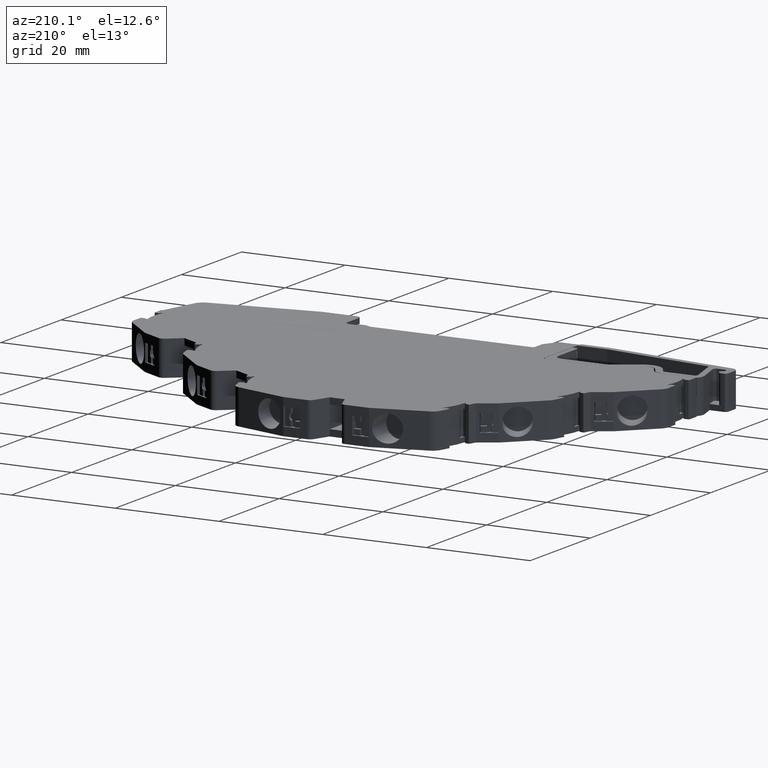
[diagram: clean part render]
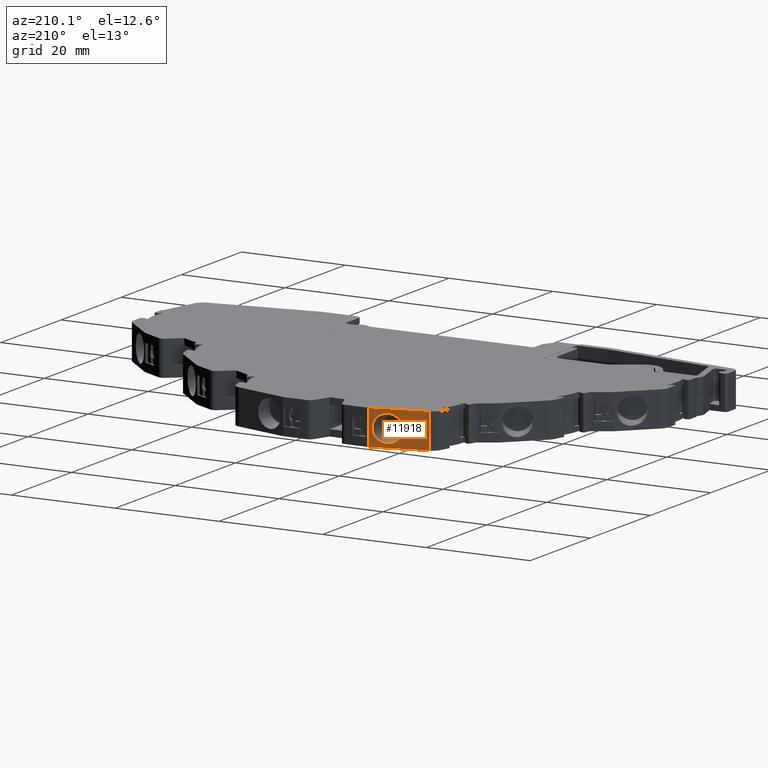
[diagram: same view with one face highlighted and labeled with its STEP entity id]
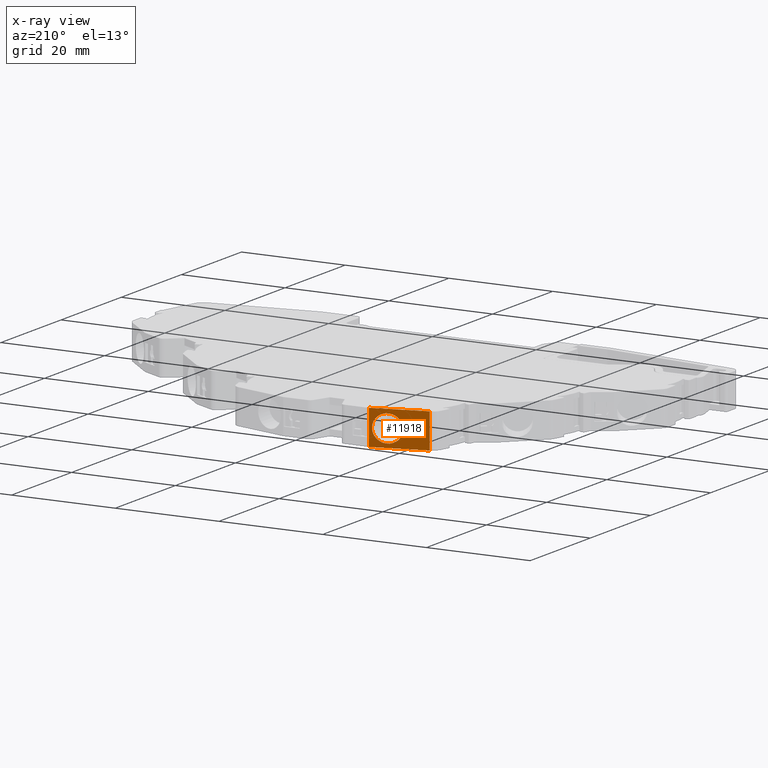
[diagram: x-ray of the same camera — body ghosted, the highlighted face saturated]
A machine part, auxiliary view. The second image highlights one B-rep face of the part: STEP entity #11918.
The next image is the same camera in x-ray: the body ghosted, the highlighted face saturated — about 0% of this face is hidden behind the body in this view.
In plain terms, the highlighted planar face has unit normal (-0.2586, 0.966, 0).
Its self-contained STEP definition (entity closure, byte-faithful):
#881 = CARTESIAN_POINT ( 'NONE',  ( 237.0029591341851500, 63.92908512451347000, -2.275057471245923100 ) ) ;
#882 = CARTESIAN_POINT ( 'NONE',  ( 242.1830261849520400, 65.31582119275833500, -2.275057472732343400 ) ) ;
#884 = CARTESIAN_POINT ( 'NONE',  ( 236.9929974687542000, 63.92641832491077700, 2.905000000989524300 ) ) ;
#895 = CARTESIAN_POINT ( 'NONE',  ( 242.1929878533597400, 65.31848799315790200, 2.904999999497380500 ) ) ;
#1702 = DIRECTION ( 'NONE',  ( -0.9659844830824505500, -0.2586000356611166100, 0.0000000000000000000 ) ) ;
#1704 = FACE_BOUND ( 'NONE', #17876, .T. ) ;
#1705 = PLANE ( 'NONE',  #14096 ) ;
#1723 = FACE_OUTER_BOUND ( 'NONE', #17835, .T. ) ;
#1734 = CARTESIAN_POINT ( 'NONE',  ( 229.9492062821784100, 62.04075174957875300, -112.9851010389220100 ) ) ;
#1735 = DIRECTION ( 'NONE',  ( -0.2586000356611166100, 0.9659844830824505500, 0.0000000000000000000 ) ) ;
#4706 = VERTEX_POINT ( 'NONE', #7755 ) ;
#4734 = VERTEX_POINT ( 'NONE', #7785 ) ;
#4743 = VERTEX_POINT ( 'NONE', #7745 ) ;
#4760 = VERTEX_POINT ( 'NONE', #7863 ) ;
#5856 = CARTESIAN_POINT ( 'NONE',  ( 236.9929974687542000, 63.92641832491077700, 2.905000000989524300 ) ) ;
#5985 = CARTESIAN_POINT ( 'NONE',  ( 242.1929878533597400, 65.31848799315790200, 2.904999999497380500 ) ) ;
#7745 = CARTESIAN_POINT ( 'NONE',  ( 242.6982654827689900, 65.45375394750018900, -0.4450000000000009500 ) ) ;
#7755 = CARTESIAN_POINT ( 'NONE',  ( 232.5758610212128300, 62.74392350966359500, 6.255000000000038100 ) ) ;
#7785 = CARTESIAN_POINT ( 'NONE',  ( 232.5758610212128300, 62.74392350966359500, -0.4449999999999731900 ) ) ;
#7863 = CARTESIAN_POINT ( 'NONE',  ( 242.6982654827689900, 65.45375394750018900, 6.255000000000086900 ) ) ;
#11918 = ADVANCED_FACE ( 'NONE', ( #1723, #1704 ), #1705, .T. ) ;
#12685 =( BOUNDED_CURVE ( )  B_SPLINE_CURVE ( 3, ( #20142, #20180, #20202, #20213 ),
 .UNSPECIFIED., .F., .F. ) 
 B_SPLINE_CURVE_WITH_KNOTS ( ( 4, 4 ),
 ( 0.001923077915093037600, 3.139669575100799900 ),
 .UNSPECIFIED. ) 
 CURVE ( )  GEOMETRIC_REPRESENTATION_ITEM ( )  RATIONAL_B_SPLINE_CURVE ( ( 1.000000000000000000, 0.3346153846778083800, 0.3346153846778083800, 1.000000000000000000 ) ) 
 REPRESENTATION_ITEM ( '' )  );
#12695 =( BOUNDED_CURVE ( )  B_SPLINE_CURVE ( 3, ( #884, #881, #882, #895 ),
 .UNSPECIFIED., .F., .T. ) 
 B_SPLINE_CURVE_WITH_KNOTS ( ( 4, 4 ),
 ( 3.143515731317613900, 6.281262228877865900 ),
 .UNSPECIFIED. ) 
 CURVE ( )  GEOMETRIC_REPRESENTATION_ITEM ( )  RATIONAL_B_SPLINE_CURVE ( ( 1.000000000000000000, 0.3346153845529602500, 0.3346153845529602500, 1.000000000000000000 ) ) 
 REPRESENTATION_ITEM ( '' )  );
#14096 = AXIS2_PLACEMENT_3D ( 'NONE', #1734, #1735, #1702 ) ;
#14523 = VECTOR ( 'NONE', #23056, 1000.000000000000000 ) ;
#14529 = VECTOR ( 'NONE', #23229, 1000.000000000000000 ) ;
#14594 = VECTOR ( 'NONE', #23307, 1000.000000000000000 ) ;
#14650 = VECTOR ( 'NONE', #23303, 1000.000000000000000 ) ;
#17835 = EDGE_LOOP ( 'NONE', ( #21407, #21449, #21425, #21420 ) ) ;
#17876 = EDGE_LOOP ( 'NONE', ( #21413, #21417 ) ) ;
#18992 = VERTEX_POINT ( 'NONE', #5856 ) ;
#19097 = VERTEX_POINT ( 'NONE', #5985 ) ;
#20142 = CARTESIAN_POINT ( 'NONE',  ( 242.1929878533597400, 65.31848799315790200, 2.904999999497380500 ) ) ;
#20180 = CARTESIAN_POINT ( 'NONE',  ( 242.1830261869604000, 65.31582119329598900, 8.085057469796368000 ) ) ;
#20202 = CARTESIAN_POINT ( 'NONE',  ( 237.0029591381281500, 63.92908512556903800, 8.085057471282784300 ) ) ;
#20213 = CARTESIAN_POINT ( 'NONE',  ( 236.9929974687542000, 63.92641832491077700, 2.905000000989524300 ) ) ;
#21407 = ORIENTED_EDGE ( 'NONE', *, *, #22867, .F. ) ;
#21413 = ORIENTED_EDGE ( 'NONE', *, *, #22467, .T. ) ;
#21417 = ORIENTED_EDGE ( 'NONE', *, *, #22578, .T. ) ;
#21420 = ORIENTED_EDGE ( 'NONE', *, *, #22814, .T. ) ;
#21425 = ORIENTED_EDGE ( 'NONE', *, *, #22887, .F. ) ;
#21449 = ORIENTED_EDGE ( 'NONE', *, *, #22889, .T. ) ;
#22467 = EDGE_CURVE ( 'NONE', #18992, #19097, #12695, .T. ) ;
#22578 = EDGE_CURVE ( 'NONE', #19097, #18992, #12685, .T. ) ;
#22814 = EDGE_CURVE ( 'NONE', #4706, #4760, #23077, .T. ) ;
#22867 = EDGE_CURVE ( 'NONE', #4743, #4760, #23209, .T. ) ;
#22887 = EDGE_CURVE ( 'NONE', #4706, #4734, #23284, .T. ) ;
#22889 = EDGE_CURVE ( 'NONE', #4743, #4734, #23308, .T. ) ;
#23056 = DIRECTION ( 'NONE',  ( 0.9659844830824505500, 0.2586000356611166100, -0.0000000000000000000 ) ) ;
#23077 = LINE ( 'NONE', #23080, #14523 ) ;
#23080 = CARTESIAN_POINT ( 'NONE',  ( 229.9492062821784100, 62.04075174957875300, 6.255000000000066500 ) ) ;
#23209 = LINE ( 'NONE', #23243, #14529 ) ;
#23229 = DIRECTION ( 'NONE',  ( 0.0000000000000000000, -0.0000000000000000000, 1.000000000000000000 ) ) ;
#23243 = CARTESIAN_POINT ( 'NONE',  ( 242.6982654827689900, 65.45375394750018900, -112.9851010389220100 ) ) ;
#23269 = CARTESIAN_POINT ( 'NONE',  ( 229.9492062821784100, 62.04075174957875300, -0.4450000000000009500 ) ) ;
#23284 = LINE ( 'NONE', #23302, #14594 ) ;
#23302 = CARTESIAN_POINT ( 'NONE',  ( 232.5758610212128000, 62.74392350966356700, -112.9851010389220100 ) ) ;
#23303 = DIRECTION ( 'NONE',  ( -0.9659844830824505500, -0.2586000356611166100, 0.0000000000000000000 ) ) ;
#23307 = DIRECTION ( 'NONE',  ( -0.0000000000000000000, -0.0000000000000000000, -1.000000000000000000 ) ) ;
#23308 = LINE ( 'NONE', #23269, #14650 ) ;